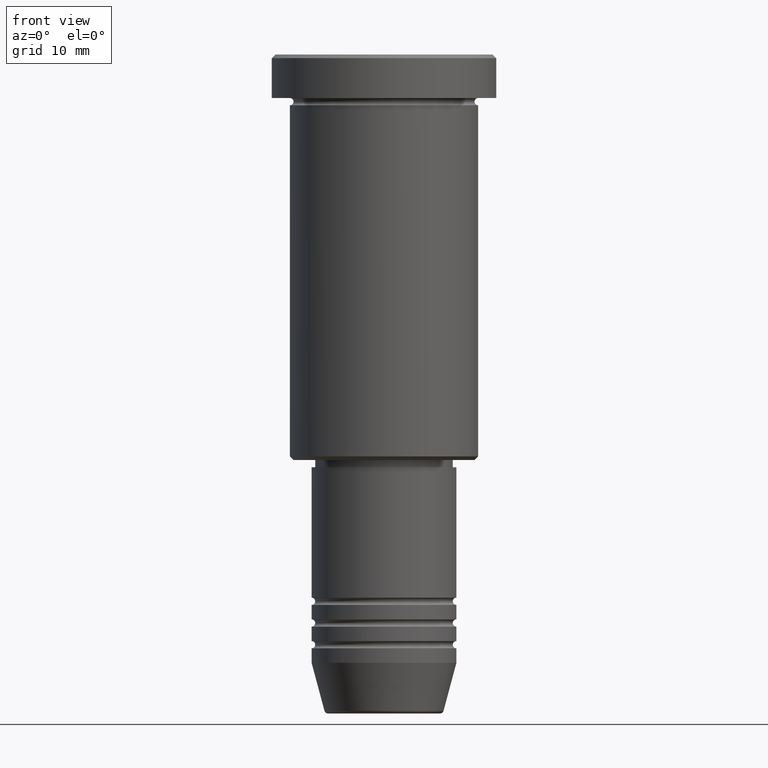
[diagram: clean part render]
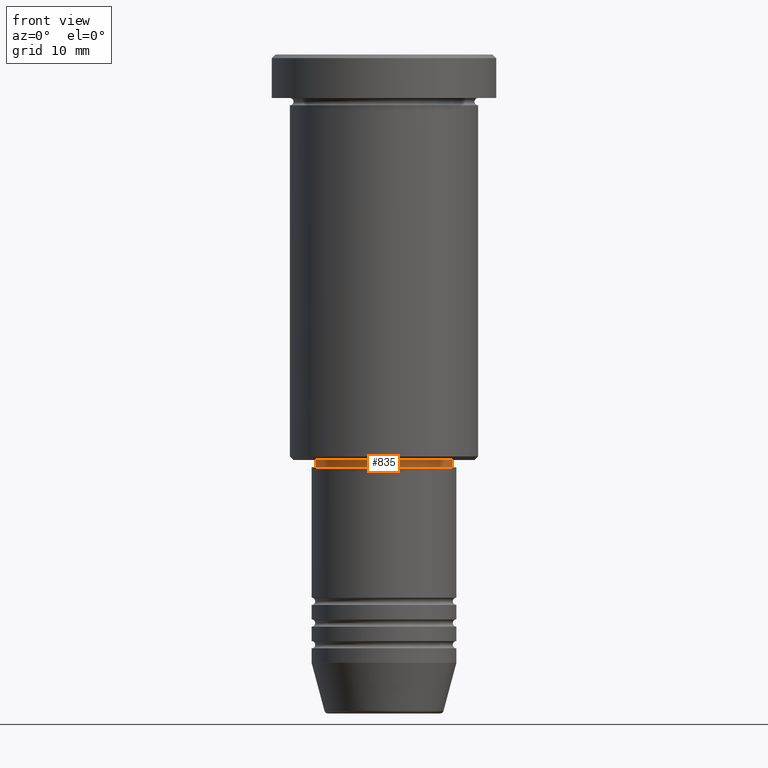
[diagram: same view with one face highlighted and labeled with its STEP entity id]
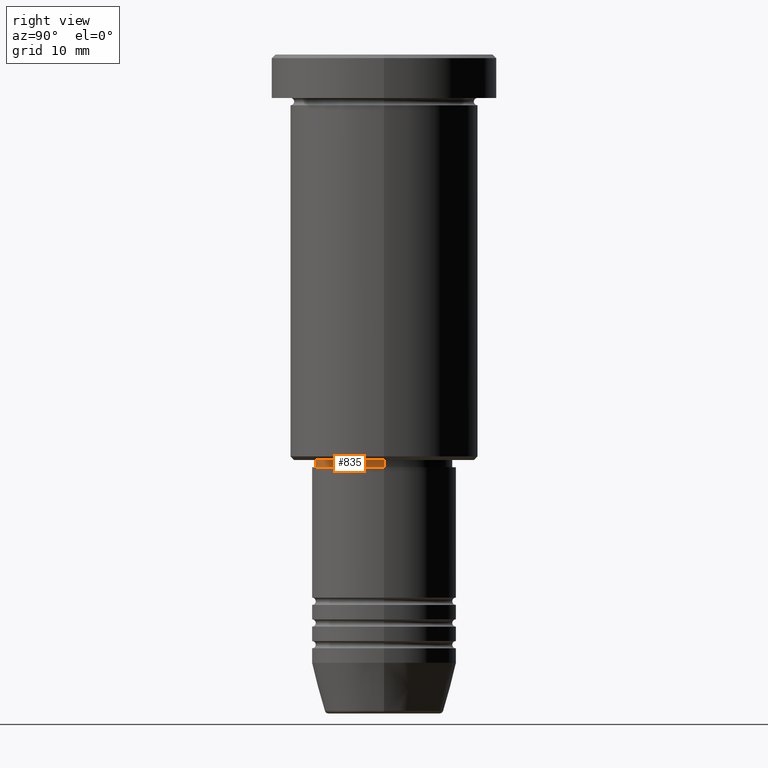
[diagram: same view with one face highlighted and labeled with its STEP entity id]
A machine part, front view. The second image highlights one B-rep face of the part: STEP entity #835.
A second angle (right view) of the same face is appended — the face is thin or edge-on in the first view.
In plain terms, the highlighted cylindrical surface (partial cylindrical patch) has radius 9.5 mm, axis along (-0, -0, 1).
Its self-contained STEP definition (entity closure, byte-faithful):
#84 = AXIS2_PLACEMENT_3D ( 'NONE', #810, #286, #895 ) ;
#86 = VERTEX_POINT ( 'NONE', #1047 ) ;
#126 = DIRECTION ( 'NONE',  ( 1.000000000000000000, 0.000000000000000000, 0.000000000000000000 ) ) ;
#137 = DIRECTION ( 'NONE',  ( -0.000000000000000000, -0.000000000000000000, 1.000000000000000000 ) ) ;
#146 = CARTESIAN_POINT ( 'NONE',  ( 0.000000000000000000, 0.000000000000000000, 0.000000000000000000 ) ) ;
#229 = VECTOR ( 'NONE', #870, 1000.000000000000000 ) ;
#258 = CARTESIAN_POINT ( 'NONE',  ( -9.500000000000000000, 1.163414459189985485E-15, -56.00000000000000711 ) ) ;
#286 = DIRECTION ( 'NONE',  ( -0.000000000000000000, -0.000000000000000000, 1.000000000000000000 ) ) ;
#312 = DIRECTION ( 'NONE',  ( -0.000000000000000000, -0.000000000000000000, 1.000000000000000000 ) ) ;
#329 = DIRECTION ( 'NONE',  ( -0.000000000000000000, -0.000000000000000000, 1.000000000000000000 ) ) ;
#346 = ORIENTED_EDGE ( 'NONE', *, *, #727, .T. ) ;
#355 = ORIENTED_EDGE ( 'NONE', *, *, #670, .F. ) ;
#369 = CIRCLE ( 'NONE', #463, 9.500000000000000000 ) ;
#463 = AXIS2_PLACEMENT_3D ( 'NONE', #1026, #312, #126 ) ;
#506 = CARTESIAN_POINT ( 'NONE',  ( -9.500000000000000000, 1.163414459189985485E-15, 0.000000000000000000 ) ) ;
#512 = LINE ( 'NONE', #506, #229 ) ;
#515 = DIRECTION ( 'NONE',  ( 1.000000000000000000, 0.000000000000000000, 0.000000000000000000 ) ) ;
#529 = EDGE_LOOP ( 'NONE', ( #355, #801, #346, #726 ) ) ;
#537 = EDGE_CURVE ( 'NONE', #671, #1075, #992, .T. ) ;
#670 = EDGE_CURVE ( 'NONE', #671, #1174, #512, .T. ) ;
#671 = VERTEX_POINT ( 'NONE', #1066 ) ;
#726 = ORIENTED_EDGE ( 'NONE', *, *, #829, .F. ) ;
#727 = EDGE_CURVE ( 'NONE', #1075, #86, #1155, .T. ) ;
#744 = FACE_OUTER_BOUND ( 'NONE', #529, .T. ) ;
#801 = ORIENTED_EDGE ( 'NONE', *, *, #537, .T. ) ;
#810 = CARTESIAN_POINT ( 'NONE',  ( 0.000000000000000000, 0.000000000000000000, -57.00000000000000000 ) ) ;
#824 = VECTOR ( 'NONE', #329, 1000.000000000000000 ) ;
#829 = EDGE_CURVE ( 'NONE', #1174, #86, #369, .T. ) ;
#835 = ADVANCED_FACE ( 'NONE', ( #744 ), #1014, .T. ) ;
#870 = DIRECTION ( 'NONE',  ( -0.000000000000000000, -0.000000000000000000, 1.000000000000000000 ) ) ;
#889 = CARTESIAN_POINT ( 'NONE',  ( 9.500000000000000000, 0.000000000000000000, 0.000000000000000000 ) ) ;
#895 = DIRECTION ( 'NONE',  ( 1.000000000000000000, 0.000000000000000000, 0.000000000000000000 ) ) ;
#992 = CIRCLE ( 'NONE', #84, 9.500000000000000000 ) ;
#1014 = CYLINDRICAL_SURFACE ( 'NONE', #1139, 9.500000000000000000 ) ;
#1026 = CARTESIAN_POINT ( 'NONE',  ( 0.000000000000000000, 0.000000000000000000, -56.00000000000000711 ) ) ;
#1046 = CARTESIAN_POINT ( 'NONE',  ( 9.500000000000000000, 0.000000000000000000, -57.00000000000000000 ) ) ;
#1047 = CARTESIAN_POINT ( 'NONE',  ( 9.500000000000000000, 0.000000000000000000, -56.00000000000000711 ) ) ;
#1066 = CARTESIAN_POINT ( 'NONE',  ( -9.500000000000000000, 1.163414459189985485E-15, -57.00000000000000000 ) ) ;
#1075 = VERTEX_POINT ( 'NONE', #1046 ) ;
#1139 = AXIS2_PLACEMENT_3D ( 'NONE', #146, #137, #515 ) ;
#1155 = LINE ( 'NONE', #889, #824 ) ;
#1174 = VERTEX_POINT ( 'NONE', #258 ) ;